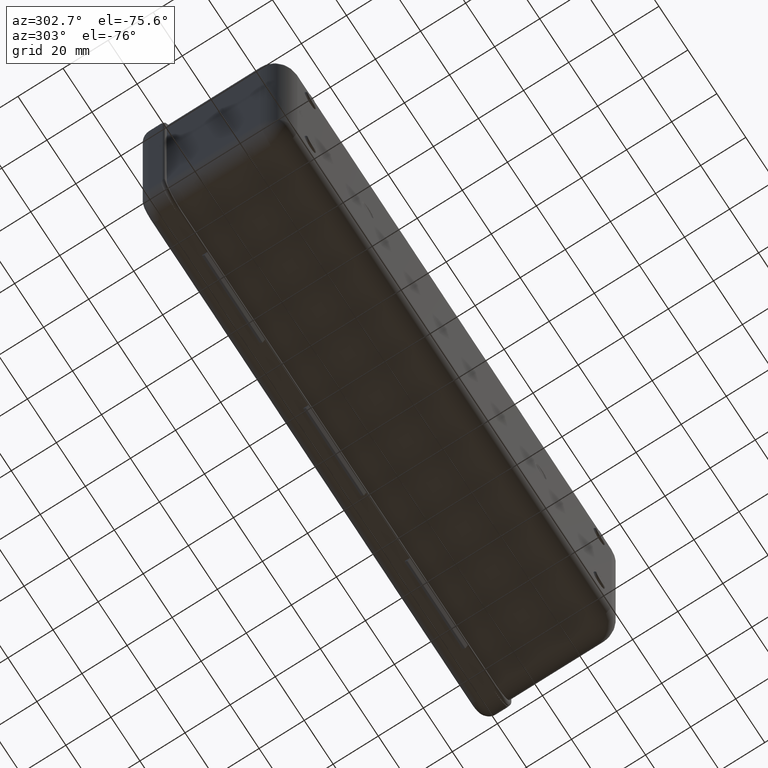
[diagram: clean part render]
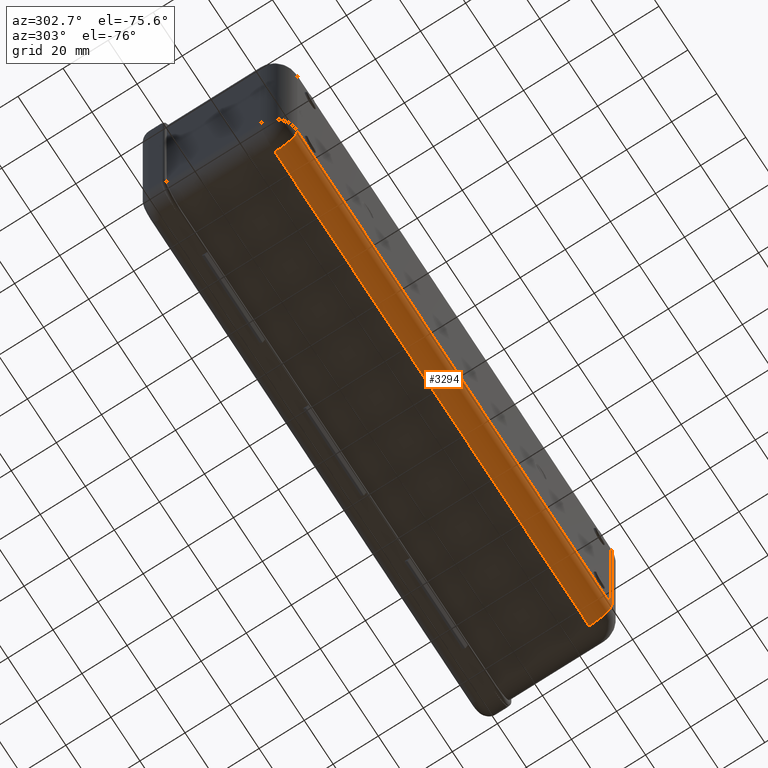
[diagram: same view with one face highlighted and labeled with its STEP entity id]
A machine part, auxiliary view. The second image highlights one B-rep face of the part: STEP entity #3294.
In plain terms, the highlighted cylindrical surface (edge-blend (fillet) strip) has radius 10 mm, axis along (1, 0, 0).
Its self-contained STEP definition (entity closure, byte-faithful):
#355 = CARTESIAN_POINT ( 'NONE',  ( -108.4999999999999716, -48.00000000000000000, -51.39999999999999858 ) ) ;
#390 = ORIENTED_EDGE ( 'NONE', *, *, #2731, .F. ) ;
#487 = ORIENTED_EDGE ( 'NONE', *, *, #3852, .T. ) ;
#873 = EDGE_CURVE ( 'NONE', #1853, #6556, #6397, .T. ) ;
#1618 = DIRECTION ( 'NONE',  ( 1.000000000000000000, -0.0000000000000000000, -0.0000000000000000000 ) ) ;
#1638 = CARTESIAN_POINT ( 'NONE',  ( 108.5000000000000142, -48.00000000000000000, -51.39999999999999858 ) ) ;
#1676 = CARTESIAN_POINT ( 'NONE',  ( 108.5000000000000142, -48.00000000000000000, -41.39999999999999858 ) ) ;
#1818 = DIRECTION ( 'NONE',  ( -1.000000000000000000, -0.0000000000000000000, -0.0000000000000000000 ) ) ;
#1840 = CYLINDRICAL_SURFACE ( 'NONE', #7130, 10.00000000000000178 ) ;
#1853 = VERTEX_POINT ( 'NONE', #3798 ) ;
#1935 = CARTESIAN_POINT ( 'NONE',  ( 0.0000000000000000000, -48.00000000000000000, -41.39999999999999858 ) ) ;
#2170 = CIRCLE ( 'NONE', #5579, 10.00000000000000178 ) ;
#2327 = VECTOR ( 'NONE', #1618, 1000.000000000000000 ) ;
#2731 = EDGE_CURVE ( 'NONE', #9201, #4688, #3814, .T. ) ;
#3119 = ORIENTED_EDGE ( 'NONE', *, *, #7470, .F. ) ;
#3186 = AXIS2_PLACEMENT_3D ( 'NONE', #8929, #1818, #5256 ) ;
#3294 = ADVANCED_FACE ( 'NONE', ( #6115 ), #1840, .T. ) ;
#3305 = ORIENTED_EDGE ( 'NONE', *, *, #873, .F. ) ;
#3798 = CARTESIAN_POINT ( 'NONE',  ( -108.4999999999999858, -58.00000000000000000, -41.39999999999999858 ) ) ;
#3814 = LINE ( 'NONE', #355, #5028 ) ;
#3852 = EDGE_CURVE ( 'NONE', #9201, #6556, #2170, .T. ) ;
#4261 = CARTESIAN_POINT ( 'NONE',  ( 108.5000000000000000, -58.00000000000000000, -41.39999999999999858 ) ) ;
#4525 = CIRCLE ( 'NONE', #3186, 10.00000000000000178 ) ;
#4681 = DIRECTION ( 'NONE',  ( 1.000000000000000000, 0.0000000000000000000, -0.0000000000000000000 ) ) ;
#4688 = VERTEX_POINT ( 'NONE', #6203 ) ;
#5028 = VECTOR ( 'NONE', #7339, 1000.000000000000000 ) ;
#5256 = DIRECTION ( 'NONE',  ( 0.0000000000000000000, 0.0000000000000000000, 1.000000000000000000 ) ) ;
#5348 = DIRECTION ( 'NONE',  ( -1.000000000000000000, -0.0000000000000000000, -0.0000000000000000000 ) ) ;
#5464 = DIRECTION ( 'NONE',  ( 0.0000000000000000000, 0.0000000000000000000, -1.000000000000000000 ) ) ;
#5579 = AXIS2_PLACEMENT_3D ( 'NONE', #1676, #5348, #7475 ) ;
#6115 = FACE_OUTER_BOUND ( 'NONE', #7823, .T. ) ;
#6203 = CARTESIAN_POINT ( 'NONE',  ( -108.4999999999999858, -48.00000000000000000, -51.39999999999999858 ) ) ;
#6397 = LINE ( 'NONE', #4261, #2327 ) ;
#6556 = VERTEX_POINT ( 'NONE', #8315 ) ;
#7130 = AXIS2_PLACEMENT_3D ( 'NONE', #1935, #4681, #5464 ) ;
#7339 = DIRECTION ( 'NONE',  ( -1.000000000000000000, 0.0000000000000000000, 0.0000000000000000000 ) ) ;
#7470 = EDGE_CURVE ( 'NONE', #4688, #1853, #4525, .T. ) ;
#7475 = DIRECTION ( 'NONE',  ( 0.0000000000000000000, 0.0000000000000000000, 1.000000000000000000 ) ) ;
#7823 = EDGE_LOOP ( 'NONE', ( #487, #3305, #3119, #390 ) ) ;
#8315 = CARTESIAN_POINT ( 'NONE',  ( 108.5000000000000142, -58.00000000000000000, -41.39999999999999858 ) ) ;
#8929 = CARTESIAN_POINT ( 'NONE',  ( -108.4999999999999858, -48.00000000000000000, -41.39999999999999858 ) ) ;
#9201 = VERTEX_POINT ( 'NONE', #1638 ) ;